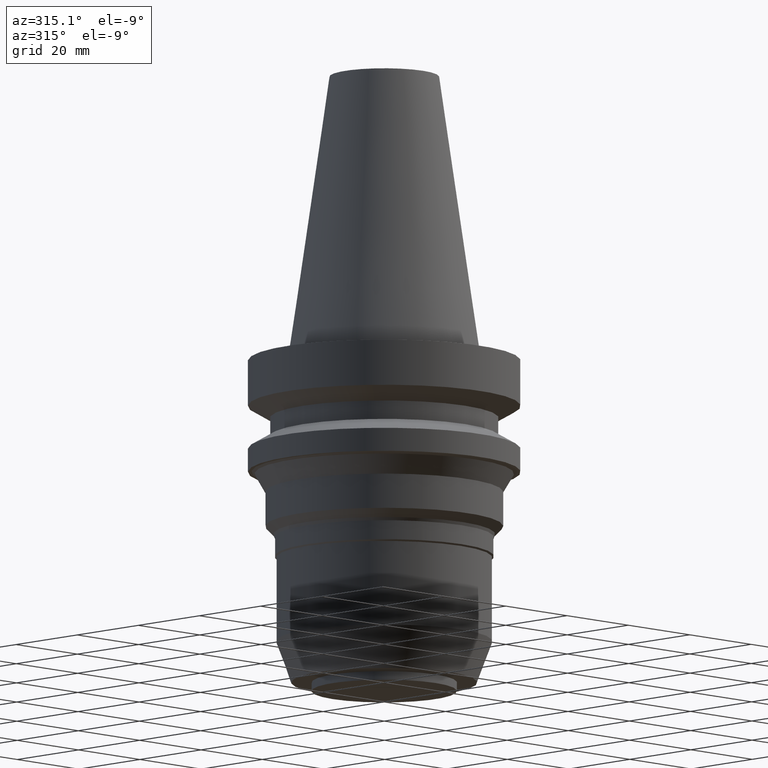
[diagram: clean part render]
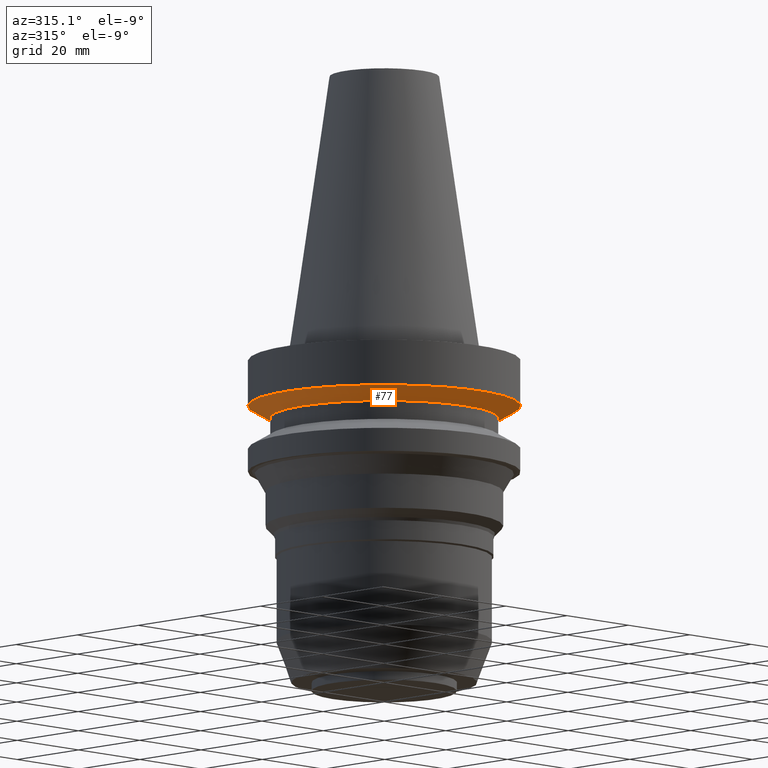
[diagram: same view with one face highlighted and labeled with its STEP entity id]
A machine part, auxiliary view. The second image highlights one B-rep face of the part: STEP entity #77.
In plain terms, the highlighted conical surface has half-angle 60 deg.
Its self-contained STEP definition (entity closure, byte-faithful):
#68=EDGE_CURVE('Unnamed[1]',#195,#195,#196,.T.);
#77=ADVANCED_FACE('Unnamed[1]',(#208,#209),#210,.T.);
#123=EDGE_CURVE('Unnamed[1]',#281,#281,#282,.T.);
#195=VERTEX_POINT('',#376);
#196=CIRCLE('',#377,31.5000000000003);
#208=FACE_BOUND('',#393,.T.);
#209=FACE_BOUND('',#394,.T.);
#210=CONICAL_SURFACE('',#395,28.9999999999999,1.04719755119657);
#281=VERTEX_POINT('',#484);
#282=CIRCLE('',#485,26.4999999999994);
#376=CARTESIAN_POINT('',(7.08182973902924E-016,31.5000000000004,-11.5655056526664));
#377=AXIS2_PLACEMENT_3D('',#592,#593,#594);
#393=EDGE_LOOP('',(#605));
#394=EDGE_LOOP('',(#606));
#395=AXIS2_PLACEMENT_3D('',#607,#608,#609);
#484=CARTESIAN_POINT('',(8.8494551369045E-016,26.4999999999995,-14.4522569986152));
#485=AXIS2_PLACEMENT_3D('',#689,#690,#691);
#592=CARTESIAN_POINT('',(7.08182973902923E-016,4.12325826952919E-014,-11.5655056526663));
#593=DIRECTION('',(6.12323399573677E-017,-4.60918739095494E-016,-1.0));
#594=DIRECTION('',(2.33959801942475E-032,1.0,-4.60918739095494E-016));
#605=ORIENTED_EDGE('',*,*,#123,.F.);
#606=ORIENTED_EDGE('',*,*,#68,.T.);
#607=CARTESIAN_POINT('',(7.96564243796687E-016,4.05673038000634E-014,-13.0088813256408));
#608=DIRECTION('',(-6.12323399573677E-017,4.60918739095494E-016,1.0));
#609=DIRECTION('',(2.33959801942475E-032,1.0,-4.60918739095494E-016));
#689=CARTESIAN_POINT('',(8.8494551369045E-016,3.9902024904835E-014,-14.4522569986152));
#690=DIRECTION('',(6.12323399573677E-017,-4.60918739095494E-016,-1.0));
#691=DIRECTION('',(2.33959801942475E-032,1.0,-4.60918739095494E-016));